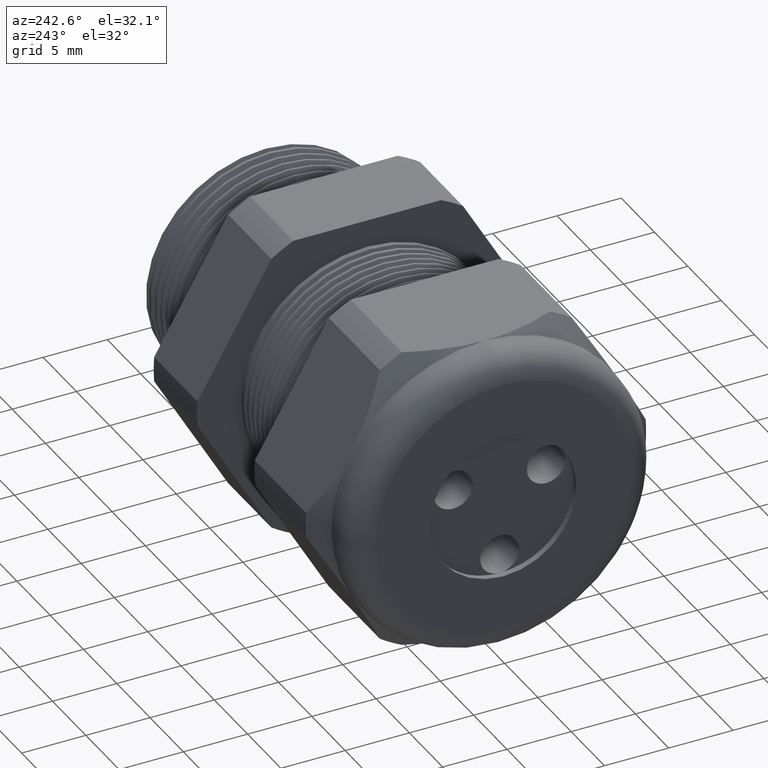
[diagram: clean part render]
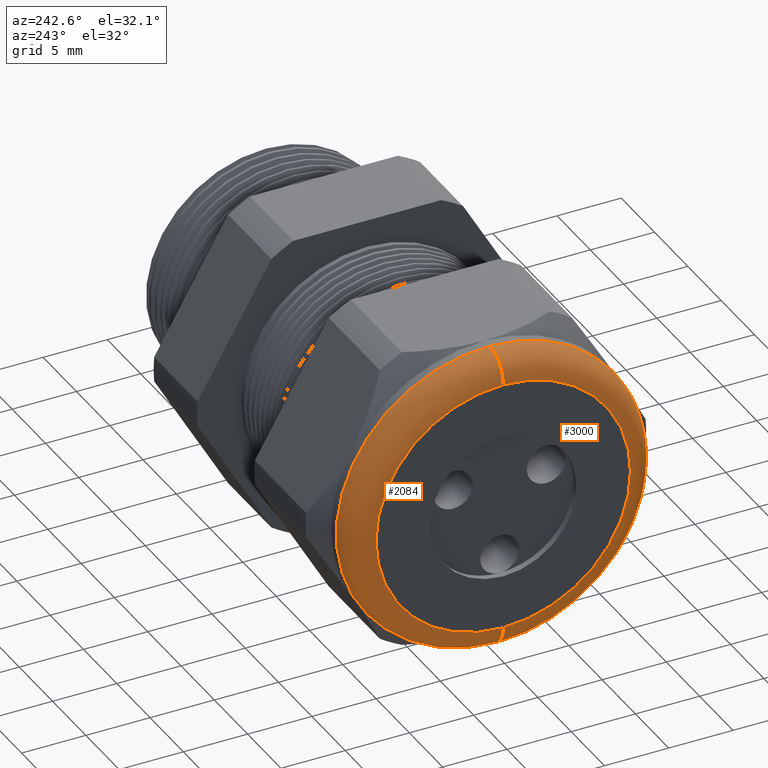
[diagram: same view with one multi-face feature highlighted, each face labeled with its STEP entity id]
A machine part, auxiliary view. The highlighted faces form ONE feature: a constant-radius fillet chain: 2 tangent blend faces with common blend radius 2.032 mm. The faces share edges in the B-rep.
Their STEP definitions:
[1] entity #2084 (Torus):
#1959 = EDGE_CURVE ( 'NONE', #2102, #2157, #4092, .T. ) ;
#2084 = ADVANCED_FACE ( 'NONE', ( #4343 ), #4342, .T. ) ;
#2085 = ORIENTED_EDGE ( 'NONE', *, *, #2087, .F. ) ;
#2087 = EDGE_CURVE ( 'NONE', #2101, #2102, #4333, .T. ) ;
#2089 = EDGE_LOOP ( 'NONE', ( #2085, #2158, #2166, #2155 ) ) ;
#2101 = VERTEX_POINT ( 'NONE', #4361 ) ;
#2102 = VERTEX_POINT ( 'NONE', #4360 ) ;
#2155 = ORIENTED_EDGE ( 'NONE', *, *, #1959, .F. ) ;
#2157 = VERTEX_POINT ( 'NONE', #4485 ) ;
#2158 = ORIENTED_EDGE ( 'NONE', *, *, #2168, .T. ) ;
#2166 = ORIENTED_EDGE ( 'NONE', *, *, #2170, .F. ) ;
#2168 = EDGE_CURVE ( 'NONE', #2101, #2169, #4535, .T. ) ;
#2169 = VERTEX_POINT ( 'NONE', #4530 ) ;
#2170 = EDGE_CURVE ( 'NONE', #2157, #2169, #4528, .T. ) ;
#4088 = DIRECTION ( 'NONE',  ( 0.0000000000000000000, 0.0000000000000000000, -1.000000000000000000 ) ) ;
#4089 = DIRECTION ( 'NONE',  ( 0.0000000000000000000, -1.000000000000000000, 0.0000000000000000000 ) ) ;
#4090 = CARTESIAN_POINT ( 'NONE',  ( -1.290000000000000300, 0.0000000000000000000, 0.3899999999999999600 ) ) ;
#4091 = AXIS2_PLACEMENT_3D ( 'NONE', #4090, #4089, #4088 ) ;
#4092 = CIRCLE ( 'NONE', #4091, 0.07999999999999996000 ) ;
#4329 = DIRECTION ( 'NONE',  ( 0.0000000000000000000, 0.0000000000000000000, 1.000000000000000000 ) ) ;
#4330 = DIRECTION ( 'NONE',  ( 1.000000000000000000, 0.0000000000000000000, 0.0000000000000000000 ) ) ;
#4331 = CARTESIAN_POINT ( 'NONE',  ( -1.290000000000000300, 0.0000000000000000000, 0.0000000000000000000 ) ) ;
#4332 = AXIS2_PLACEMENT_3D ( 'NONE', #4331, #4330, #4329 ) ;
#4333 = CIRCLE ( 'NONE', #4332, 0.4699999999999999200 ) ;
#4337 = DIRECTION ( 'NONE',  ( 0.0000000000000000000, 0.0000000000000000000, 1.000000000000000000 ) ) ;
#4338 = DIRECTION ( 'NONE',  ( -1.000000000000000000, 0.0000000000000000000, 0.0000000000000000000 ) ) ;
#4339 = CARTESIAN_POINT ( 'NONE',  ( -1.290000000000000300, 0.0000000000000000000, 0.0000000000000000000 ) ) ;
#4340 = AXIS2_PLACEMENT_3D ( 'NONE', #4339, #4338, #4337 ) ;
#4342 = TOROIDAL_SURFACE ( 'NONE', #4340, 0.3899999999999999600, 0.08000000000000000200 ) ;
#4343 = FACE_OUTER_BOUND ( 'NONE', #2089, .T. ) ;
#4360 = CARTESIAN_POINT ( 'NONE',  ( -1.290000000000000300, 5.755839955992558400E-017, 0.4699999999999999200 ) ) ;
#4361 = CARTESIAN_POINT ( 'NONE',  ( -1.290000000000000300, 0.0000000000000000000, -0.4699999999999999200 ) ) ;
#4485 = CARTESIAN_POINT ( 'NONE',  ( -1.370000000000000100, 0.0000000000000000000, 0.3899999999999999600 ) ) ;
#4524 = DIRECTION ( 'NONE',  ( 0.0000000000000000000, 0.0000000000000000000, 1.000000000000000000 ) ) ;
#4525 = DIRECTION ( 'NONE',  ( -1.000000000000000000, 0.0000000000000000000, 0.0000000000000000000 ) ) ;
#4526 = CARTESIAN_POINT ( 'NONE',  ( -1.370000000000000100, 0.0000000000000000000, 0.0000000000000000000 ) ) ;
#4527 = AXIS2_PLACEMENT_3D ( 'NONE', #4526, #4525, #4524 ) ;
#4528 = CIRCLE ( 'NONE', #4527, 0.3899999999999999600 ) ;
#4530 = CARTESIAN_POINT ( 'NONE',  ( -1.370000000000000100, 5.265981236333617600E-017, -0.3899999999999999600 ) ) ;
#4531 = DIRECTION ( 'NONE',  ( 0.0000000000000000000, -1.224646799147353900E-016, 1.000000000000000000 ) ) ;
#4532 = DIRECTION ( 'NONE',  ( 0.0000000000000000000, 1.000000000000000000, 1.224646799147353200E-016 ) ) ;
#4533 = CARTESIAN_POINT ( 'NONE',  ( -1.290000000000000300, 4.776122516674676800E-017, -0.3899999999999999600 ) ) ;
#4534 = AXIS2_PLACEMENT_3D ( 'NONE', #4533, #4532, #4531 ) ;
#4535 = CIRCLE ( 'NONE', #4534, 0.07999999999999996000 ) ;
[2] entity #3000 (Torus):
#743 = DIRECTION ( 'NONE',  ( 0.0000000000000000000, 0.0000000000000000000, 1.000000000000000000 ) ) ;
#744 = DIRECTION ( 'NONE',  ( 1.000000000000000000, 0.0000000000000000000, 0.0000000000000000000 ) ) ;
#745 = CARTESIAN_POINT ( 'NONE',  ( -1.290000000000000300, 0.0000000000000000000, 0.0000000000000000000 ) ) ;
#746 = AXIS2_PLACEMENT_3D ( 'NONE', #745, #744, #743 ) ;
#747 = CIRCLE ( 'NONE', #746, 0.4699999999999999200 ) ;
#868 = DIRECTION ( 'NONE',  ( 0.0000000000000000000, 0.0000000000000000000, 1.000000000000000000 ) ) ;
#869 = DIRECTION ( 'NONE',  ( -1.000000000000000000, 0.0000000000000000000, 0.0000000000000000000 ) ) ;
#870 = CARTESIAN_POINT ( 'NONE',  ( -1.370000000000000100, 0.0000000000000000000, 0.0000000000000000000 ) ) ;
#871 = AXIS2_PLACEMENT_3D ( 'NONE', #870, #869, #868 ) ;
#872 = CIRCLE ( 'NONE', #871, 0.3899999999999999600 ) ;
#1055 = CARTESIAN_POINT ( 'NONE',  ( -1.290000000000000300, 0.0000000000000000000, 0.0000000000000000000 ) ) ;
#1111 = DIRECTION ( 'NONE',  ( 0.0000000000000000000, 0.0000000000000000000, 1.000000000000000000 ) ) ;
#1112 = DIRECTION ( 'NONE',  ( -1.000000000000000000, 0.0000000000000000000, 0.0000000000000000000 ) ) ;
#1113 = AXIS2_PLACEMENT_3D ( 'NONE', #1055, #1112, #1111 ) ;
#1114 = TOROIDAL_SURFACE ( 'NONE', #1113, 0.3899999999999999600, 0.08000000000000000200 ) ;
#1115 = FACE_OUTER_BOUND ( 'NONE', #3001, .T. ) ;
#1959 = EDGE_CURVE ( 'NONE', #2102, #2157, #4092, .T. ) ;
#2101 = VERTEX_POINT ( 'NONE', #4361 ) ;
#2102 = VERTEX_POINT ( 'NONE', #4360 ) ;
#2157 = VERTEX_POINT ( 'NONE', #4485 ) ;
#2168 = EDGE_CURVE ( 'NONE', #2101, #2169, #4535, .T. ) ;
#2169 = VERTEX_POINT ( 'NONE', #4530 ) ;
#2793 = EDGE_CURVE ( 'NONE', #2102, #2101, #747, .T. ) ;
#2861 = EDGE_CURVE ( 'NONE', #2169, #2157, #872, .T. ) ;
#3000 = ADVANCED_FACE ( 'NONE', ( #1115 ), #1114, .T. ) ;
#3001 = EDGE_LOOP ( 'NONE', ( #3002, #3003, #3004, #3005 ) ) ;
#3002 = ORIENTED_EDGE ( 'NONE', *, *, #2168, .F. ) ;
#3003 = ORIENTED_EDGE ( 'NONE', *, *, #2793, .F. ) ;
#3004 = ORIENTED_EDGE ( 'NONE', *, *, #1959, .T. ) ;
#3005 = ORIENTED_EDGE ( 'NONE', *, *, #2861, .F. ) ;
#4088 = DIRECTION ( 'NONE',  ( 0.0000000000000000000, 0.0000000000000000000, -1.000000000000000000 ) ) ;
#4089 = DIRECTION ( 'NONE',  ( 0.0000000000000000000, -1.000000000000000000, 0.0000000000000000000 ) ) ;
#4090 = CARTESIAN_POINT ( 'NONE',  ( -1.290000000000000300, 0.0000000000000000000, 0.3899999999999999600 ) ) ;
#4091 = AXIS2_PLACEMENT_3D ( 'NONE', #4090, #4089, #4088 ) ;
#4092 = CIRCLE ( 'NONE', #4091, 0.07999999999999996000 ) ;
#4360 = CARTESIAN_POINT ( 'NONE',  ( -1.290000000000000300, 5.755839955992558400E-017, 0.4699999999999999200 ) ) ;
#4361 = CARTESIAN_POINT ( 'NONE',  ( -1.290000000000000300, 0.0000000000000000000, -0.4699999999999999200 ) ) ;
#4485 = CARTESIAN_POINT ( 'NONE',  ( -1.370000000000000100, 0.0000000000000000000, 0.3899999999999999600 ) ) ;
#4530 = CARTESIAN_POINT ( 'NONE',  ( -1.370000000000000100, 5.265981236333617600E-017, -0.3899999999999999600 ) ) ;
#4531 = DIRECTION ( 'NONE',  ( 0.0000000000000000000, -1.224646799147353900E-016, 1.000000000000000000 ) ) ;
#4532 = DIRECTION ( 'NONE',  ( 0.0000000000000000000, 1.000000000000000000, 1.224646799147353200E-016 ) ) ;
#4533 = CARTESIAN_POINT ( 'NONE',  ( -1.290000000000000300, 4.776122516674676800E-017, -0.3899999999999999600 ) ) ;
#4534 = AXIS2_PLACEMENT_3D ( 'NONE', #4533, #4532, #4531 ) ;
#4535 = CIRCLE ( 'NONE', #4534, 0.07999999999999996000 ) ;